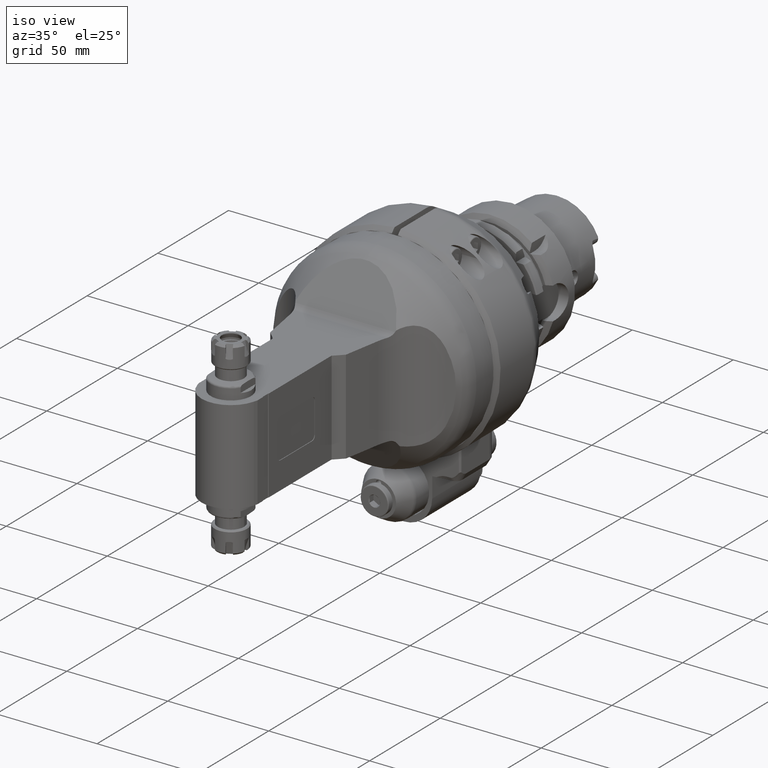
[diagram: clean part render]
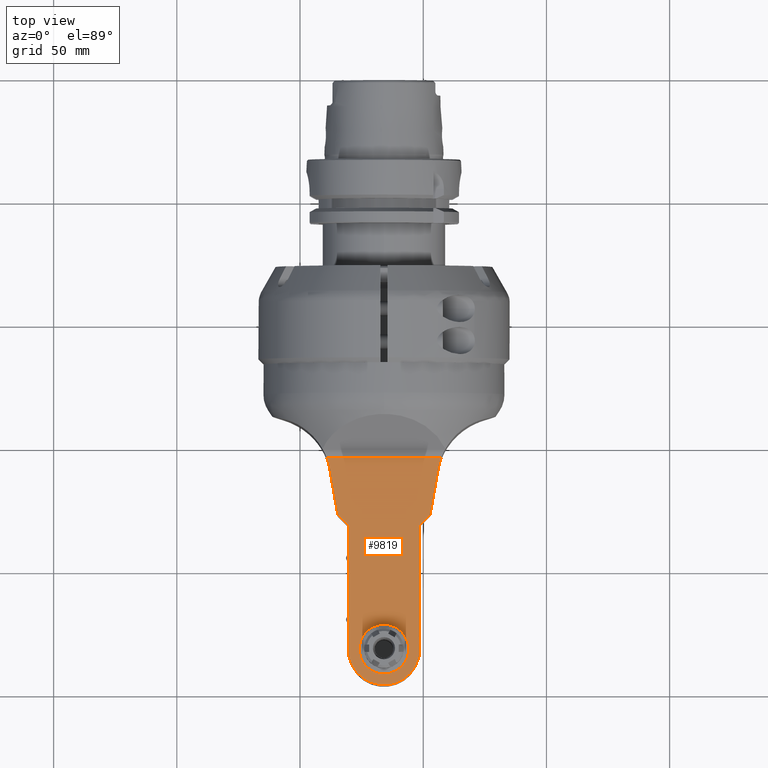
[diagram: tour spotlight — one face highlighted and labeled with its STEP entity id]
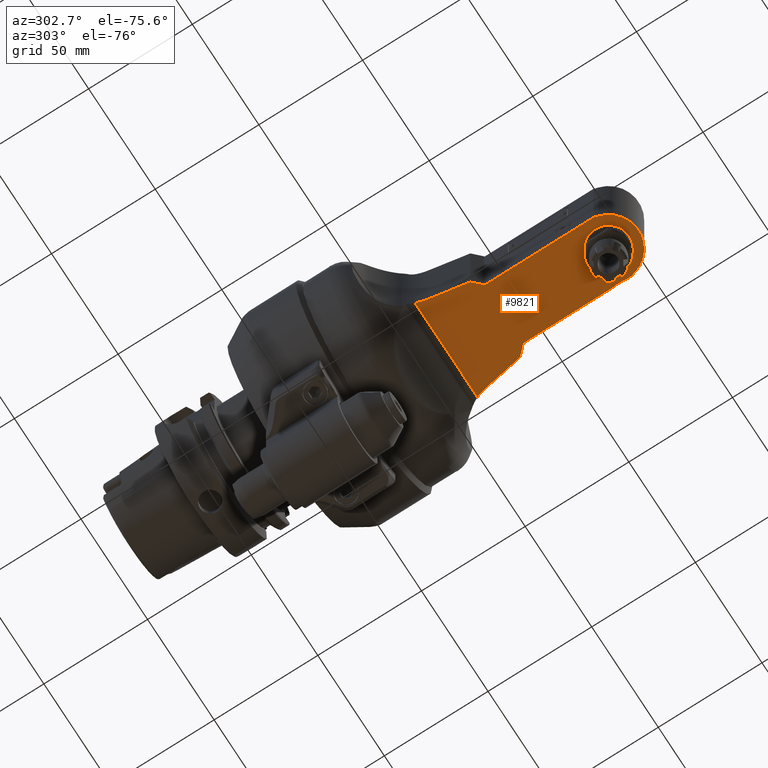
[diagram: tour spotlight — one face highlighted and labeled with its STEP entity id]
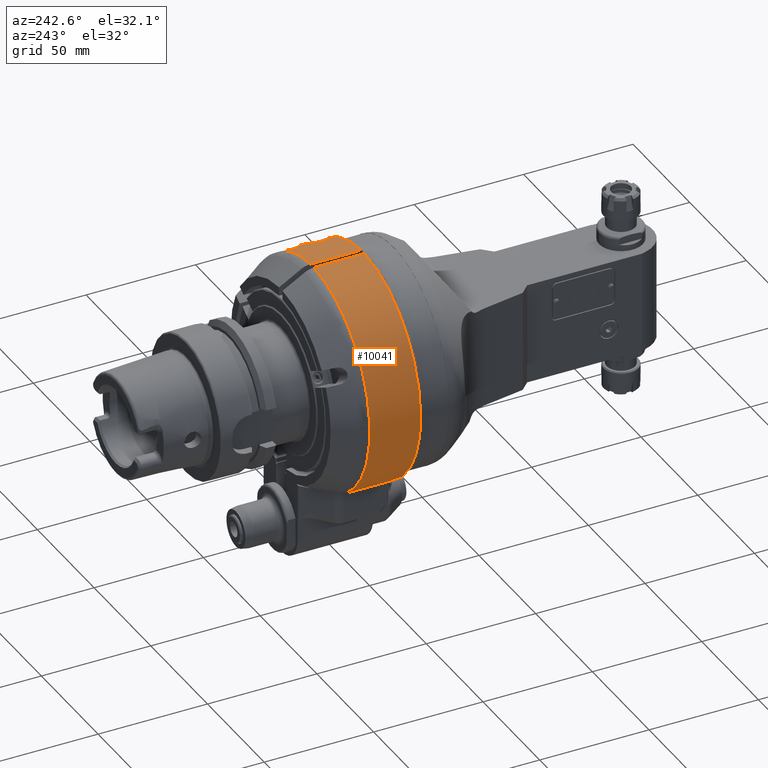
[diagram: tour spotlight — one face highlighted and labeled with its STEP entity id]
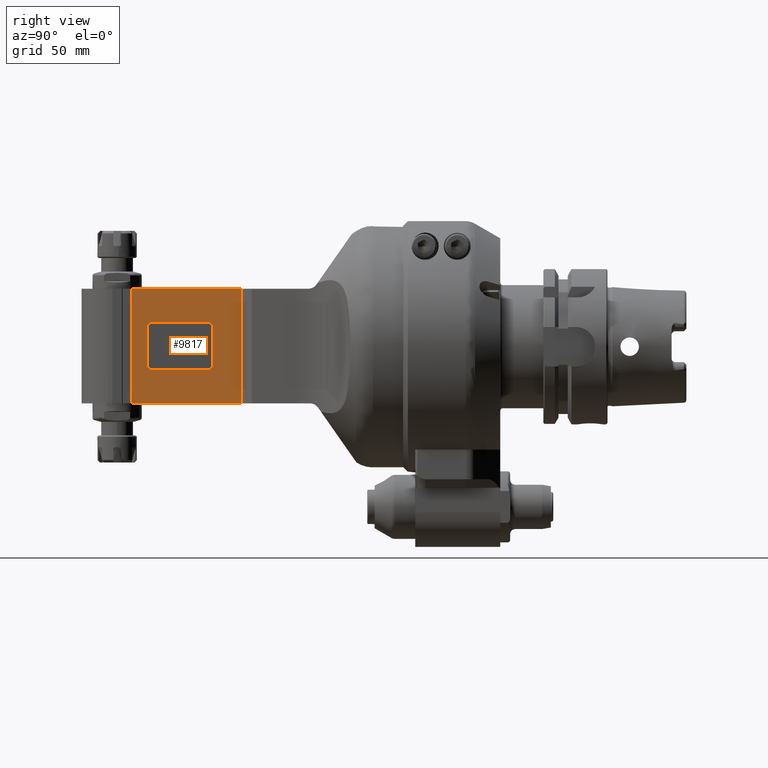
[diagram: tour spotlight — one face highlighted and labeled with its STEP entity id]
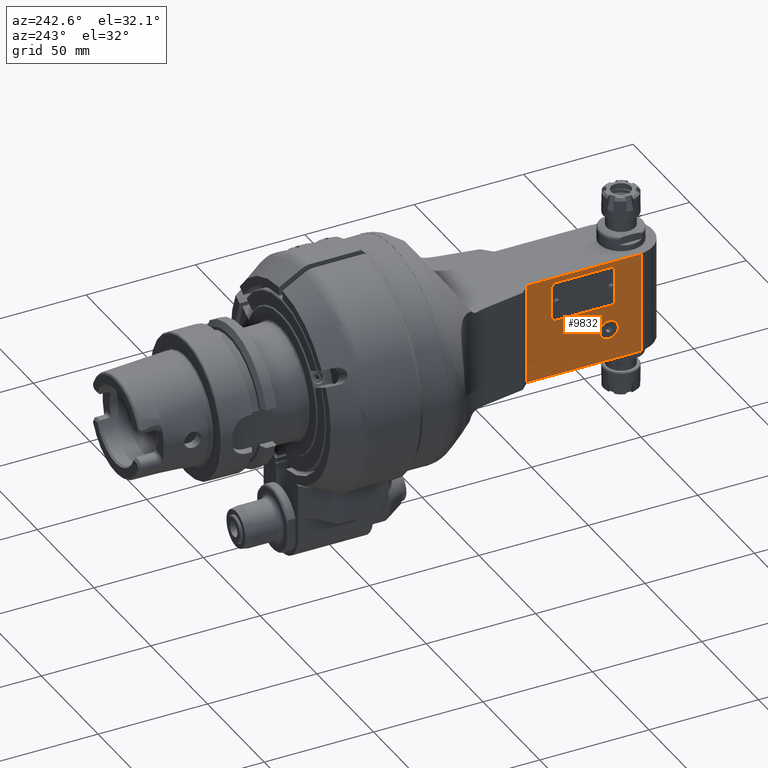
[diagram: tour spotlight — one face highlighted and labeled with its STEP entity id]
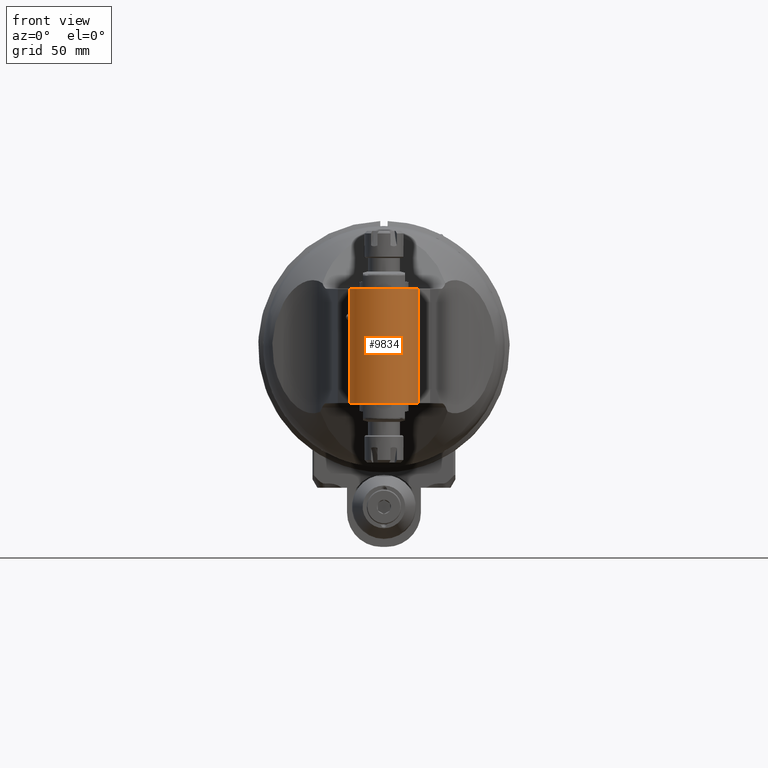
[diagram: tour spotlight — one face highlighted and labeled with its STEP entity id]
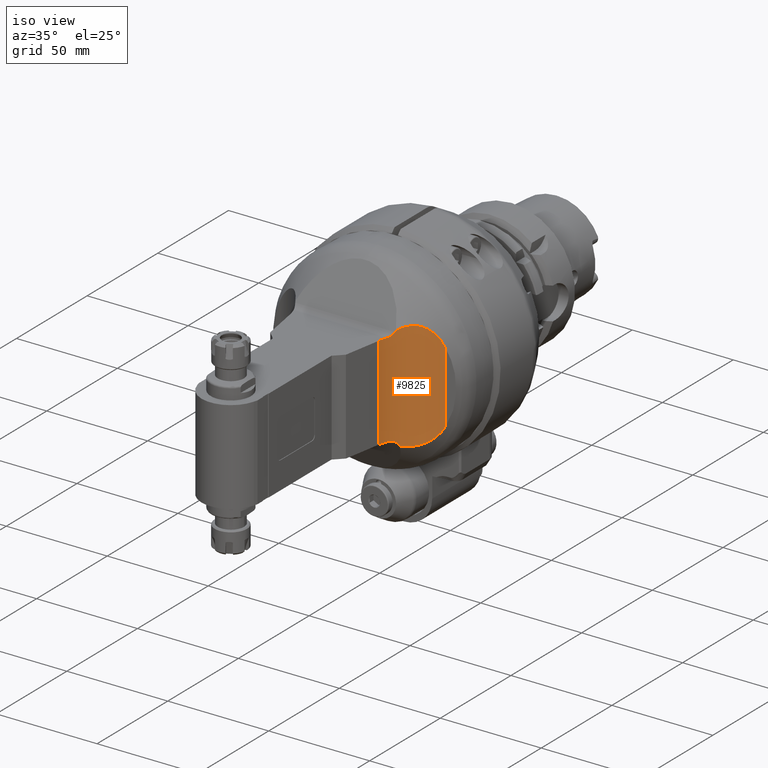
[diagram: tour spotlight — one face highlighted and labeled with its STEP entity id]
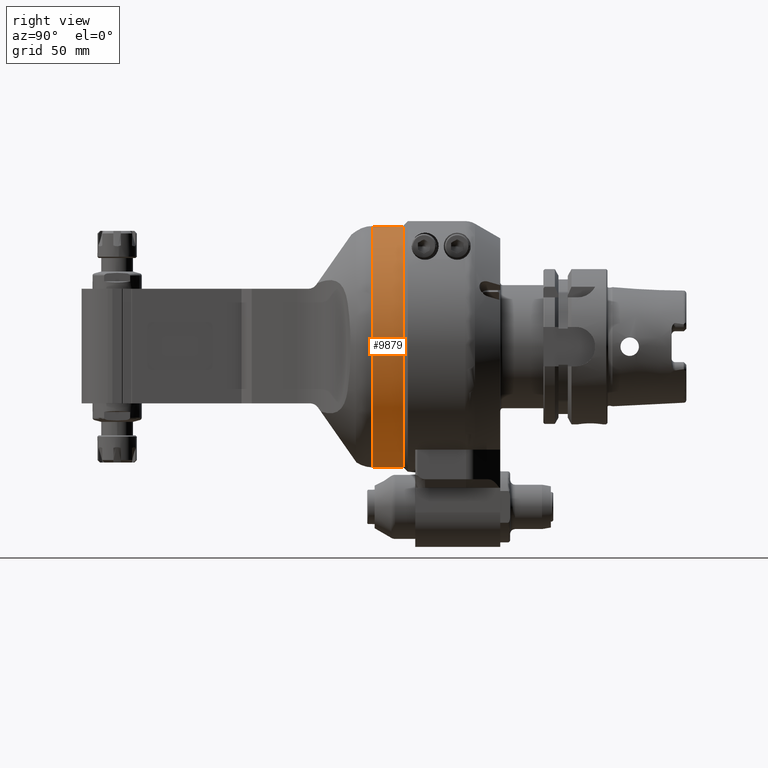
[diagram: tour spotlight — one face highlighted and labeled with its STEP entity id]
A machine part: a face-by-face anatomy tour. The part has 603 B-rep faces; the first image is the clean iso view, then the 8 largest visible faces are spotlighted one at a time (largest first), each with its STEP entity span.

Face 1 — top view, entity #9819. In plain terms, the highlighted planar face has unit normal (-0, 0, -1).
Definition (entity closure, byte-faithful):
#492=FACE_BOUND('',#1858,.T.);
#757=CIRCLE('',#10488,26.);
#758=CIRCLE('',#10489,26.);
#759=CIRCLE('',#10490,14.5);
#760=CIRCLE('',#10491,10.);
#1253=FACE_OUTER_BOUND('',#1857,.T.);
#1857=EDGE_LOOP('',(#6524,#6525,#6526,#6527,#6528,#6529,#6530,#6531,#6532,
#6533,#6534,#6535,#6536,#6537,#6538,#6539,#6540,#6541));
#1858=EDGE_LOOP('',(#6542));
#2559=LINE('',#14580,#3270);
#2563=LINE('',#14594,#3274);
#2566=LINE('',#14600,#3277);
#2567=LINE('',#14602,#3278);
#2568=LINE('',#14604,#3279);
#2569=LINE('',#14608,#3280);
#2570=LINE('',#14612,#3281);
#2571=LINE('',#14614,#3282);
#2572=LINE('',#14616,#3283);
#2573=LINE('',#14618,#3284);
#2574=LINE('',#14620,#3285);
#2575=LINE('',#14624,#3286);
#2576=LINE('',#14626,#3287);
#2577=LINE('',#14628,#3288);
#2578=LINE('',#14629,#3289);
#3270=VECTOR('',#11625,44.50000003875);
#3274=VECTOR('',#11637,0.282842712474601);
#3277=VECTOR('',#11642,0.115426611885695);
#3278=VECTOR('',#11643,5.83766373239261);
#3279=VECTOR('',#11644,18.6166855458298);
#3280=VECTOR('',#11647,46.46662504907);
#3281=VECTOR('',#11650,18.6166855458298);
#3282=VECTOR('',#11651,5.83766373239302);
#3283=VECTOR('',#11652,0.115426611885695);
#3284=VECTOR('',#11653,52.40896125377);
#3285=VECTOR('',#11654,1.90896121501705);
#3286=VECTOR('',#11657,1.90896121501705);
#3287=VECTOR('',#11658,3.908961215017);
#3288=VECTOR('',#11659,0.282842712474601);
#3289=VECTOR('',#11660,3.6);
#3982=VERTEX_POINT('',#14574);
#3984=VERTEX_POINT('',#14578);
#3990=VERTEX_POINT('',#14593);
#3992=VERTEX_POINT('',#14599);
#3993=VERTEX_POINT('',#14601);
#3994=VERTEX_POINT('',#14603);
#3995=VERTEX_POINT('',#14605);
#3996=VERTEX_POINT('',#14607);
#3997=VERTEX_POINT('',#14609);
#3998=VERTEX_POINT('',#14611);
#3999=VERTEX_POINT('',#14613);
#4000=VERTEX_POINT('',#14615);
#4001=VERTEX_POINT('',#14617);
#4002=VERTEX_POINT('',#14619);
#4003=VERTEX_POINT('',#14621);
#4004=VERTEX_POINT('',#14623);
#4005=VERTEX_POINT('',#14625);
#4006=VERTEX_POINT('',#14627);
#4007=VERTEX_POINT('',#14630);
#4991=EDGE_CURVE('',#3982,#3984,#2559,.T.);
#4998=EDGE_CURVE('',#3982,#3990,#2563,.T.);
#5001=EDGE_CURVE('',#3984,#3992,#2566,.T.);
#5002=EDGE_CURVE('',#3992,#3993,#2567,.T.);
#5003=EDGE_CURVE('',#3993,#3994,#2568,.T.);
#5004=EDGE_CURVE('',#3994,#3995,#757,.T.);
#5005=EDGE_CURVE('',#3996,#3995,#2569,.T.);
#5006=EDGE_CURVE('',#3996,#3997,#758,.T.);
#5007=EDGE_CURVE('',#3997,#3998,#2570,.T.);
#5008=EDGE_CURVE('',#3998,#3999,#2571,.T.);
#5009=EDGE_CURVE('',#3999,#4000,#2572,.T.);
#5010=EDGE_CURVE('',#4000,#4001,#2573,.T.);
#5011=EDGE_CURVE('',#4001,#4002,#2574,.T.);
#5012=EDGE_CURVE('',#4003,#4002,#759,.T.);
#5013=EDGE_CURVE('',#4003,#4004,#2575,.T.);
#5014=EDGE_CURVE('',#4004,#4005,#2576,.T.);
#5015=EDGE_CURVE('',#4006,#4005,#2577,.T.);
#5016=EDGE_CURVE('',#3990,#4006,#2578,.T.);
#5017=EDGE_CURVE('',#4007,#4007,#760,.T.);
#6524=ORIENTED_EDGE('',*,*,#4998,.F.);
#6525=ORIENTED_EDGE('',*,*,#4991,.T.);
#6526=ORIENTED_EDGE('',*,*,#5001,.T.);
#6527=ORIENTED_EDGE('',*,*,#5002,.T.);
#6528=ORIENTED_EDGE('',*,*,#5003,.T.);
#6529=ORIENTED_EDGE('',*,*,#5004,.T.);
#6530=ORIENTED_EDGE('',*,*,#5005,.F.);
#6531=ORIENTED_EDGE('',*,*,#5006,.T.);
#6532=ORIENTED_EDGE('',*,*,#5007,.T.);
#6533=ORIENTED_EDGE('',*,*,#5008,.T.);
#6534=ORIENTED_EDGE('',*,*,#5009,.T.);
#6535=ORIENTED_EDGE('',*,*,#5010,.T.);
#6536=ORIENTED_EDGE('',*,*,#5011,.T.);
#6537=ORIENTED_EDGE('',*,*,#5012,.F.);
#6538=ORIENTED_EDGE('',*,*,#5013,.T.);
#6539=ORIENTED_EDGE('',*,*,#5014,.T.);
#6540=ORIENTED_EDGE('',*,*,#5015,.F.);
#6541=ORIENTED_EDGE('',*,*,#5016,.F.);
#6542=ORIENTED_EDGE('',*,*,#5017,.T.);
#9530=PLANE('',#10487);
#9819=ADVANCED_FACE('',(#1253,#492),#9530,.F.);
#10487=AXIS2_PLACEMENT_3D('',#14598,#11640,#11641);
#10488=AXIS2_PLACEMENT_3D('',#14606,#11645,#11646);
#10489=AXIS2_PLACEMENT_3D('',#14610,#11648,#11649);
#10490=AXIS2_PLACEMENT_3D('',#14622,#11655,#11656);
#10491=AXIS2_PLACEMENT_3D('',#14631,#11661,#11662);
#11625=DIRECTION('',(0.,1.,0.));
#11637=DIRECTION('',(-0.707106781186598,-0.707106781186498,0.));
#11640=DIRECTION('center_axis',(0.,0.,-1.));
#11641=DIRECTION('ref_axis',(0.,1.,0.));
#11642=DIRECTION('',(0.999999999999944,-3.35708702420415E-7,0.));
#11643=DIRECTION('',(0.707106781186548,0.707106781186548,0.));
#11644=DIRECTION('',(0.173648177666902,0.984807753012213,0.));
#11645=DIRECTION('center_axis',(0.,0.,-1.));
#11646=DIRECTION('ref_axis',(-0.984807753012142,0.173648177667307,0.));
#11647=DIRECTION('',(1.,0.,0.));
#11648=DIRECTION('center_axis',(0.,0.,-1.));
#11649=DIRECTION('ref_axis',(0.936450799860009,0.350798944470403,0.));
#11650=DIRECTION('',(0.173648177666902,-0.984807753012213,0.));
#11651=DIRECTION('',(0.707106781186598,-0.707106781186498,0.));
#11652=DIRECTION('',(0.999999999999944,3.35708702420215E-7,0.));
#11653=DIRECTION('',(0.,-1.,0.));
#11654=DIRECTION('',(0.258819045102493,-0.965925826289076,0.));
#11655=DIRECTION('center_axis',(0.,0.,-1.));
#11656=DIRECTION('ref_axis',(0.965925826289076,-0.258819045102493,0.));
#11657=DIRECTION('',(0.258819045102493,0.965925826289076,0.));
#11658=DIRECTION('',(0.,1.,0.));
#11659=DIRECTION('',(0.707106781186598,-0.707106781186498,0.));
#11660=DIRECTION('',(0.,-1.,0.));
#11661=DIRECTION('center_axis',(0.,0.,-1.));
#11662=DIRECTION('ref_axis',(5.755397733752E-13,1.,0.));
#14574=CARTESIAN_POINT('',(14.5,6.,23.5));
#14578=CARTESIAN_POINT('',(14.5,50.5000000382903,23.5));
#14580=CARTESIAN_POINT('',(14.5,6.,23.5));
#14593=CARTESIAN_POINT('',(14.3,5.8,23.5));
#14594=CARTESIAN_POINT('',(14.5,6.,23.5));
#14598=CARTESIAN_POINT('Origin',(58.8000024,-9.5,23.5));
#14599=CARTESIAN_POINT('',(14.61542661189,50.5,23.5));
#14600=CARTESIAN_POINT('',(14.5,50.50000003875,23.5));
#14601=CARTESIAN_POINT('',(18.74327822335,54.62785161146,23.5));
#14602=CARTESIAN_POINT('',(14.61542661189,50.5,23.5));
#14603=CARTESIAN_POINT('',(21.97603174258,72.96170787239,23.5));
#14604=CARTESIAN_POINT('',(18.74327822335,54.62785161146,23.5));
#14605=CARTESIAN_POINT('',(23.23331252454,77.56762780927,23.5));
#14606=CARTESIAN_POINT('Origin',(47.5810333209,68.44685525304,23.5));
#14607=CARTESIAN_POINT('',(-23.23331252454,77.56762780927,23.5));
#14608=CARTESIAN_POINT('',(-23.23331252454,77.56762780927,23.5));
#14609=CARTESIAN_POINT('',(-21.97603174258,72.96170787239,23.5));
#14610=CARTESIAN_POINT('Origin',(-47.5810333209,68.44685525304,23.5));
#14611=CARTESIAN_POINT('',(-18.74327822335,54.62785161146,23.5));
#14612=CARTESIAN_POINT('',(-21.97603174258,72.96170787239,23.5));
#14613=CARTESIAN_POINT('',(-14.61542661189,50.5,23.5));
#14614=CARTESIAN_POINT('',(-18.74327822335,54.62785161146,23.5));
#14615=CARTESIAN_POINT('',(-14.5,50.5000000382901,23.5));
#14616=CARTESIAN_POINT('',(-14.61542661189,50.5,23.5));
#14617=CARTESIAN_POINT('',(-14.5,-1.908961215017,23.5));
#14618=CARTESIAN_POINT('',(-14.5,50.50000003875,23.5));
#14619=CARTESIAN_POINT('',(-14.00592448119,-3.752876153987,23.5));
#14620=CARTESIAN_POINT('',(-14.5,-1.908961215017,23.5));
#14621=CARTESIAN_POINT('',(14.00592448119,-3.752876153987,23.5));
#14622=CARTESIAN_POINT('Origin',(0.,0.,23.5));
#14623=CARTESIAN_POINT('',(14.5,-1.908961215017,23.5));
#14624=CARTESIAN_POINT('',(14.00592448119,-3.752876153987,23.5));
#14625=CARTESIAN_POINT('',(14.5,2.,23.5));
#14626=CARTESIAN_POINT('',(14.5,-1.908961215017,23.5));
#14627=CARTESIAN_POINT('',(14.3,2.2,23.5));
#14628=CARTESIAN_POINT('',(14.3,2.2,23.5));
#14629=CARTESIAN_POINT('',(14.3,5.8,23.5));
#14630=CARTESIAN_POINT('',(5.75987516784215E-12,9.99999999988081,23.5));
#14631=CARTESIAN_POINT('Origin',(0.,-1.191940431602E-10,23.5));

Face 2 — auxiliary view, entity #9821. In plain terms, the highlighted planar face has unit normal (-0, 0, -1).
Definition (entity closure, byte-faithful):
#493=FACE_BOUND('',#1861,.T.);
#761=CIRCLE('',#10494,14.5);
#762=CIRCLE('',#10495,26.);
#763=CIRCLE('',#10496,26.);
#764=CIRCLE('',#10497,10.);
#1255=FACE_OUTER_BOUND('',#1860,.T.);
#1860=EDGE_LOOP('',(#6547,#6548,#6549,#6550,#6551,#6552,#6553,#6554,#6555,
#6556,#6557,#6558,#6559,#6560,#6561,#6562,#6563,#6564));
#1861=EDGE_LOOP('',(#6565));
#2557=LINE('',#14577,#3268);
#2565=LINE('',#14597,#3276);
#2580=LINE('',#14635,#3291);
#2581=LINE('',#14638,#3292);
#2582=LINE('',#14640,#3293);
#2583=LINE('',#14642,#3294);
#2584=LINE('',#14646,#3295);
#2585=LINE('',#14648,#3296);
#2586=LINE('',#14650,#3297);
#2587=LINE('',#14652,#3298);
#2588=LINE('',#14654,#3299);
#2589=LINE('',#14658,#3300);
#2590=LINE('',#14662,#3301);
#2591=LINE('',#14664,#3302);
#2592=LINE('',#14665,#3303);
#3268=VECTOR('',#11623,44.50000003875);
#3276=VECTOR('',#11639,0.282842712474601);
#3291=VECTOR('',#11666,3.6);
#3292=VECTOR('',#11669,0.282842712474601);
#3293=VECTOR('',#11670,3.908961215017);
#3294=VECTOR('',#11671,1.90896121501705);
#3295=VECTOR('',#11674,1.90896121501705);
#3296=VECTOR('',#11675,52.40896125377);
#3297=VECTOR('',#11676,0.115426611885695);
#3298=VECTOR('',#11677,5.83766373239302);
#3299=VECTOR('',#11678,18.6166855458298);
#3300=VECTOR('',#11681,47.01444572508);
#3301=VECTOR('',#11684,18.6166855458298);
#3302=VECTOR('',#11685,5.83766373239261);
#3303=VECTOR('',#11686,0.115426611885695);
#3981=VERTEX_POINT('',#14573);
#3983=VERTEX_POINT('',#14576);
#3991=VERTEX_POINT('',#14595);
#4008=VERTEX_POINT('',#14633);
#4009=VERTEX_POINT('',#14637);
#4010=VERTEX_POINT('',#14639);
#4011=VERTEX_POINT('',#14641);
#4012=VERTEX_POINT('',#14643);
#4013=VERTEX_POINT('',#14645);
#4014=VERTEX_POINT('',#14647);
#4015=VERTEX_POINT('',#14649);
#4016=VERTEX_POINT('',#14651);
#4017=VERTEX_POINT('',#14653);
#4018=VERTEX_POINT('',#14655);
#4019=VERTEX_POINT('',#14657);
#4020=VERTEX_POINT('',#14659);
#4021=VERTEX_POINT('',#14661);
#4022=VERTEX_POINT('',#14663);
#4023=VERTEX_POINT('',#14666);
#4989=EDGE_CURVE('',#3983,#3981,#2557,.T.);
#5000=EDGE_CURVE('',#3981,#3991,#2565,.T.);
#5019=EDGE_CURVE('',#3991,#4008,#2580,.T.);
#5020=EDGE_CURVE('',#4008,#4009,#2581,.T.);
#5021=EDGE_CURVE('',#4009,#4010,#2582,.T.);
#5022=EDGE_CURVE('',#4010,#4011,#2583,.T.);
#5023=EDGE_CURVE('',#4011,#4012,#761,.T.);
#5024=EDGE_CURVE('',#4012,#4013,#2584,.T.);
#5025=EDGE_CURVE('',#4013,#4014,#2585,.T.);
#5026=EDGE_CURVE('',#4014,#4015,#2586,.T.);
#5027=EDGE_CURVE('',#4015,#4016,#2587,.T.);
#5028=EDGE_CURVE('',#4016,#4017,#2588,.T.);
#5029=EDGE_CURVE('',#4017,#4018,#762,.T.);
#5030=EDGE_CURVE('',#4019,#4018,#2589,.T.);
#5031=EDGE_CURVE('',#4019,#4020,#763,.T.);
#5032=EDGE_CURVE('',#4020,#4021,#2590,.T.);
#5033=EDGE_CURVE('',#4021,#4022,#2591,.T.);
#5034=EDGE_CURVE('',#4022,#3983,#2592,.T.);
#5035=EDGE_CURVE('',#4023,#4023,#764,.T.);
#6547=ORIENTED_EDGE('',*,*,#5000,.T.);
#6548=ORIENTED_EDGE('',*,*,#5019,.T.);
#6549=ORIENTED_EDGE('',*,*,#5020,.T.);
#6550=ORIENTED_EDGE('',*,*,#5021,.T.);
#6551=ORIENTED_EDGE('',*,*,#5022,.T.);
#6552=ORIENTED_EDGE('',*,*,#5023,.T.);
#6553=ORIENTED_EDGE('',*,*,#5024,.T.);
#6554=ORIENTED_EDGE('',*,*,#5025,.T.);
#6555=ORIENTED_EDGE('',*,*,#5026,.T.);
#6556=ORIENTED_EDGE('',*,*,#5027,.T.);
#6557=ORIENTED_EDGE('',*,*,#5028,.T.);
#6558=ORIENTED_EDGE('',*,*,#5029,.T.);
#6559=ORIENTED_EDGE('',*,*,#5030,.F.);
#6560=ORIENTED_EDGE('',*,*,#5031,.T.);
#6561=ORIENTED_EDGE('',*,*,#5032,.T.);
#6562=ORIENTED_EDGE('',*,*,#5033,.T.);
#6563=ORIENTED_EDGE('',*,*,#5034,.T.);
#6564=ORIENTED_EDGE('',*,*,#4989,.T.);
#6565=ORIENTED_EDGE('',*,*,#5035,.T.);
#9532=PLANE('',#10493);
#9821=ADVANCED_FACE('',(#1255,#493),#9532,.T.);
#10493=AXIS2_PLACEMENT_3D('',#14636,#11667,#11668);
#10494=AXIS2_PLACEMENT_3D('',#14644,#11672,#11673);
#10495=AXIS2_PLACEMENT_3D('',#14656,#11679,#11680);
#10496=AXIS2_PLACEMENT_3D('',#14660,#11682,#11683);
#10497=AXIS2_PLACEMENT_3D('',#14667,#11687,#11688);
#11623=DIRECTION('',(0.,-1.,0.));
#11639=DIRECTION('',(-0.707106781186598,-0.707106781186498,0.));
#11666=DIRECTION('',(0.,-1.,0.));
#11667=DIRECTION('center_axis',(0.,0.,-1.));
#11668=DIRECTION('ref_axis',(0.,-1.,0.));
#11669=DIRECTION('',(0.707106781186598,-0.707106781186498,0.));
#11670=DIRECTION('',(0.,-1.,0.));
#11671=DIRECTION('',(-0.258819045102493,-0.965925826289076,0.));
#11672=DIRECTION('center_axis',(0.,0.,-1.));
#11673=DIRECTION('ref_axis',(0.965925826289076,-0.258819045102493,0.));
#11674=DIRECTION('',(-0.258819045102493,0.965925826289076,0.));
#11675=DIRECTION('',(0.,1.,0.));
#11676=DIRECTION('',(-0.999999999999944,-3.35708456188315E-7,0.));
#11677=DIRECTION('',(-0.707106781186598,0.707106781186498,0.));
#11678=DIRECTION('',(-0.173648177666902,0.984807753012213,0.));
#11679=DIRECTION('center_axis',(0.,0.,1.));
#11680=DIRECTION('ref_axis',(0.984807753012162,0.173648177667193,0.));
#11681=DIRECTION('',(-1.,-1.50528322498E-13,0.));
#11682=DIRECTION('center_axis',(0.,0.,1.));
#11683=DIRECTION('ref_axis',(-0.925915786859665,0.377730003632286,0.));
#11684=DIRECTION('',(-0.173648177666902,-0.984807753012213,0.));
#11685=DIRECTION('',(-0.707106781186548,-0.707106781186548,0.));
#11686=DIRECTION('',(-0.999999999999944,3.35708456188515E-7,6.15579651999027E-14));
#11687=DIRECTION('center_axis',(0.,0.,1.));
#11688=DIRECTION('ref_axis',(-5.7642792556E-13,1.,0.));
#14573=CARTESIAN_POINT('',(14.5,6.,-23.));
#14576=CARTESIAN_POINT('',(14.5,50.5000000382901,-23.));
#14577=CARTESIAN_POINT('',(14.5,50.50000003875,-23.));
#14595=CARTESIAN_POINT('',(14.3,5.8,-23.));
#14597=CARTESIAN_POINT('',(14.5,6.,-23.));
#14633=CARTESIAN_POINT('',(14.3,2.2,-23.));
#14635=CARTESIAN_POINT('',(14.3,5.8,-23.));
#14636=CARTESIAN_POINT('Origin',(13.75,5.,-23.));
#14637=CARTESIAN_POINT('',(14.5,2.,-23.));
#14638=CARTESIAN_POINT('',(14.3,2.2,-23.));
#14639=CARTESIAN_POINT('',(14.5,-1.908961215017,-23.));
#14640=CARTESIAN_POINT('',(14.5,2.,-23.));
#14641=CARTESIAN_POINT('',(14.00592448119,-3.752876153987,-23.));
#14642=CARTESIAN_POINT('',(14.5,-1.908961215017,-23.));
#14643=CARTESIAN_POINT('',(-14.00592448119,-3.752876153987,-23.));
#14644=CARTESIAN_POINT('Origin',(0.,0.,-23.));
#14645=CARTESIAN_POINT('',(-14.5,-1.908961215017,-23.));
#14646=CARTESIAN_POINT('',(-14.00592448119,-3.752876153987,-23.));
#14647=CARTESIAN_POINT('',(-14.5,50.5000000382903,-23.));
#14648=CARTESIAN_POINT('',(-14.5,-1.908961215017,-23.));
#14649=CARTESIAN_POINT('',(-14.61542661189,50.5,-23.));
#14650=CARTESIAN_POINT('',(-14.5,50.50000003875,-23.));
#14651=CARTESIAN_POINT('',(-18.74327822335,54.62785161146,-23.));
#14652=CARTESIAN_POINT('',(-14.61542661189,50.5,-23.));
#14653=CARTESIAN_POINT('',(-21.97603174258,72.96170787239,-23.));
#14654=CARTESIAN_POINT('',(-18.74327822335,54.62785161146,-23.));
#14655=CARTESIAN_POINT('',(-23.50722286254,78.26783534748,-23.));
#14656=CARTESIAN_POINT('Origin',(-47.5810333209,68.44685525304,-23.));
#14657=CARTESIAN_POINT('',(23.50722286254,78.26783534749,-23.));
#14658=CARTESIAN_POINT('',(23.50722286254,78.26783534749,-23.));
#14659=CARTESIAN_POINT('',(21.97603174258,72.96170787239,-23.));
#14660=CARTESIAN_POINT('Origin',(47.5810333209,68.44685525304,-23.));
#14661=CARTESIAN_POINT('',(18.74327822335,54.62785161146,-23.));
#14662=CARTESIAN_POINT('',(21.97603174258,72.96170787239,-23.));
#14663=CARTESIAN_POINT('',(14.61542661189,50.5,-23.));
#14664=CARTESIAN_POINT('',(18.74327822335,54.62785161146,-23.));
#14665=CARTESIAN_POINT('',(14.61542661189,50.5,-23.));
#14666=CARTESIAN_POINT('',(-5.75987516784215E-12,10.,-23.));
#14667=CARTESIAN_POINT('Origin',(0.,0.,-23.));

Face 3 — auxiliary view, entity #10041. In plain terms, the highlighted cylindrical surface (partial cylindrical patch) has radius 51 mm, axis along (0, -1, 0).
Definition (entity closure, byte-faithful):
#373=B_SPLINE_CURVE_WITH_KNOTS('',3,(#16187,#16188,#16189,#16190,#16191,
#16192,#16193,#16194,#16195,#16196,#16197,#16198,#16199,#16200,#16201,#16202,
#16203,#16204),.UNSPECIFIED.,.F.,.F.,(4,2,2,2,2,2,2,2,4),(1.24497996375057,
1.57211089183856,1.89924181992655,2.10031433028339,2.30138684064023,2.50245935099707,
2.70353186135391,3.0306627894419,3.35779371752989),.UNSPECIFIED.);
#376=B_SPLINE_CURVE_WITH_KNOTS('',3,(#16282,#16283,#16284,#16285,#16286,
#16287),.UNSPECIFIED.,.F.,.F.,(4,2,4),(-0.351622839102922,-0.201072510356838,
0.),.UNSPECIFIED.);
#377=B_SPLINE_CURVE_WITH_KNOTS('',3,(#16289,#16290,#16291,#16292,#16293,
#16294,#16295,#16296,#16297,#16298,#16299,#16300,#16301,#16302,#16303,#16304,
#16305,#16306,#16307,#16308,#16309,#16310,#16311,#16312,#16313,#16314),
 .UNSPECIFIED.,.F.,.F.,(4,2,2,2,2,2,2,2,2,2,2,2,4),(0.,0.201072510356838,
0.402145020713677,0.729275948801668,1.05640687688966,1.45814522272358,1.85988356855749,
2.08063520459886,2.19101102261954,2.30138684064023,2.41176265866091,2.52213847668159,
2.7154535046118),.UNSPECIFIED.);
#378=B_SPLINE_CURVE_WITH_KNOTS('',3,(#16318,#16319,#16320,#16321,#16322,
#16323,#16324,#16325,#16326,#16327,#16328,#16329,#16330,#16331,#16332,#16333,
#16334,#16335,#16336,#16337,#16338,#16339,#16340),.UNSPECIFIED.,.F.,.F.,
(4,2,2,2,2,3,2,2,2,2,4),(-1.24497996375057,-0.843241617916652,-0.441503272082734,
-0.220751636041367,-0.110375818020684,0.,0.110375818020684,0.220751636041367,
0.441503272082734,0.843241617916652,1.24497996375057),.UNSPECIFIED.);
#540=FACE_BOUND('',#2128,.T.);
#661=CYLINDRICAL_SURFACE('',#10920,51.);
#956=CIRCLE('',#10921,51.);
#957=CIRCLE('',#10922,51.);
#958=CIRCLE('',#10923,51.);
#959=CIRCLE('',#10924,51.);
#960=CIRCLE('',#10925,51.);
#1475=FACE_OUTER_BOUND('',#2127,.T.);
#2127=EDGE_LOOP('',(#7597,#7598,#7599,#7600,#7601,#7602,#7603,#7604,#7605,
#7606,#7607));
#2128=EDGE_LOOP('',(#7608,#7609));
#2818=LINE('',#16225,#3529);
#2820=LINE('',#16229,#3531);
#2826=LINE('',#16276,#3537);
#2827=LINE('',#16317,#3538);
#3529=VECTOR('',#12756,20.23205080757);
#3531=VECTOR('',#12758,20.23205080757);
#3537=VECTOR('',#12770,23.23206191748);
#3538=VECTOR('',#12779,23.23206611221);
#4334=VERTEX_POINT('',#16183);
#4336=VERTEX_POINT('',#16186);
#4343=VERTEX_POINT('',#16223);
#4344=VERTEX_POINT('',#16224);
#4345=VERTEX_POINT('',#16226);
#4346=VERTEX_POINT('',#16228);
#4356=VERTEX_POINT('',#16272);
#4357=VERTEX_POINT('',#16273);
#4358=VERTEX_POINT('',#16275);
#4359=VERTEX_POINT('',#16279);
#4360=VERTEX_POINT('',#16281);
#4361=VERTEX_POINT('',#16288);
#4362=VERTEX_POINT('',#16315);
#5514=EDGE_CURVE('',#4336,#4334,#373,.T.);
#5524=EDGE_CURVE('',#4343,#4344,#2818,.T.);
#5526=EDGE_CURVE('',#4346,#4345,#2820,.T.);
#5537=EDGE_CURVE('',#4356,#4357,#956,.T.);
#5538=EDGE_CURVE('',#4356,#4358,#2826,.T.);
#5539=EDGE_CURVE('',#4346,#4358,#957,.T.);
#5540=EDGE_CURVE('',#4343,#4345,#958,.T.);
#5541=EDGE_CURVE('',#4359,#4344,#959,.T.);
#5542=EDGE_CURVE('',#4359,#4360,#376,.T.);
#5543=EDGE_CURVE('',#4360,#4361,#377,.T.);
#5544=EDGE_CURVE('',#4362,#4361,#960,.T.);
#5545=EDGE_CURVE('',#4362,#4357,#2827,.T.);
#5546=EDGE_CURVE('',#4334,#4336,#378,.T.);
#7597=ORIENTED_EDGE('',*,*,#5537,.F.);
#7598=ORIENTED_EDGE('',*,*,#5538,.T.);
#7599=ORIENTED_EDGE('',*,*,#5539,.F.);
#7600=ORIENTED_EDGE('',*,*,#5526,.T.);
#7601=ORIENTED_EDGE('',*,*,#5540,.F.);
#7602=ORIENTED_EDGE('',*,*,#5524,.T.);
#7603=ORIENTED_EDGE('',*,*,#5541,.F.);
#7604=ORIENTED_EDGE('',*,*,#5542,.T.);
#7605=ORIENTED_EDGE('',*,*,#5543,.T.);
#7606=ORIENTED_EDGE('',*,*,#5544,.F.);
#7607=ORIENTED_EDGE('',*,*,#5545,.T.);
#7608=ORIENTED_EDGE('',*,*,#5546,.T.);
#7609=ORIENTED_EDGE('',*,*,#5514,.T.);
#10041=ADVANCED_FACE('',(#1475,#540),#661,.T.);
#10920=AXIS2_PLACEMENT_3D('',#16271,#12766,#12767);
#10921=AXIS2_PLACEMENT_3D('',#16274,#12768,#12769);
#10922=AXIS2_PLACEMENT_3D('',#16277,#12771,#12772);
#10923=AXIS2_PLACEMENT_3D('',#16278,#12773,#12774);
#10924=AXIS2_PLACEMENT_3D('',#16280,#12775,#12776);
#10925=AXIS2_PLACEMENT_3D('',#16316,#12777,#12778);
#12756=DIRECTION('',(0.,1.,0.));
#12758=DIRECTION('',(0.,-1.,0.));
#12766=DIRECTION('center_axis',(0.,-1.,0.));
#12767=DIRECTION('ref_axis',(1.05873409698834E-10,0.,-1.));
#12768=DIRECTION('center_axis',(0.,-1.,0.));
#12769=DIRECTION('ref_axis',(0.,0.,-1.));
#12770=DIRECTION('',(1.230523343791E-9,1.,3.620724304585E-11));
#12771=DIRECTION('center_axis',(0.,1.,0.));
#12772=DIRECTION('ref_axis',(-0.574324904998308,0.,-0.818627450980411));
#12773=DIRECTION('center_axis',(0.,1.,0.));
#12774=DIRECTION('ref_axis',(0.,0.,-1.));
#12775=DIRECTION('center_axis',(0.,1.,0.));
#12776=DIRECTION('ref_axis',(0.702983781088798,0.,0.711205879844998));
#12777=DIRECTION('center_axis',(0.,1.,0.));
#12778=DIRECTION('ref_axis',(0.0294117647058804,0.,0.999567380468613));
#12779=DIRECTION('',(1.695142412605E-9,-1.,-4.9878538981E-11));
#16183=CARTESIAN_POINT('',(30.70418728464,3.5,40.7216512827));
#16186=CARTESIAN_POINT('',(30.7041872846388,14.5,40.7216512827));
#16187=CARTESIAN_POINT('Ctrl Pts',(30.7041872846388,14.5,40.7216512827));
#16188=CARTESIAN_POINT('Ctrl Pts',(31.5748612439451,14.5,40.0651617871045));
#16189=CARTESIAN_POINT('Ctrl Pts',(32.5000944024137,14.3775309176086,39.319256727814));
#16190=CARTESIAN_POINT('Ctrl Pts',(34.1986505928683,13.7586754272403,37.8511872002494));
#16191=CARTESIAN_POINT('Ctrl Pts',(34.9727734951554,13.2627488095064,37.1297545962508));
#16192=CARTESIAN_POINT('Ctrl Pts',(35.9500095679527,12.149351972259,36.1782586100401));
#16193=CARTESIAN_POINT('Ctrl Pts',(36.2931969488346,11.6039156243507,35.8317714924385));
#16194=CARTESIAN_POINT('Ctrl Pts',(36.760284817991,10.364786222781,35.3524177755747));
#16195=CARTESIAN_POINT('Ctrl Pts',(36.8840789626077,9.67024170118946,35.2216512827));
#16196=CARTESIAN_POINT('Ctrl Pts',(36.8840789626077,8.32975829881054,35.2216512827));
#16197=CARTESIAN_POINT('Ctrl Pts',(36.760284817991,7.63521377721896,35.3524177755747));
#16198=CARTESIAN_POINT('Ctrl Pts',(36.2931969488346,6.39608437564928,35.8317714924385));
#16199=CARTESIAN_POINT('Ctrl Pts',(35.9500095679527,5.85064802774095,36.1782586100401));
#16200=CARTESIAN_POINT('Ctrl Pts',(34.9727734951554,4.73725119049356,37.1297545962508));
#16201=CARTESIAN_POINT('Ctrl Pts',(34.1986505928683,4.24132457275967,37.8511872002494));
#16202=CARTESIAN_POINT('Ctrl Pts',(32.5000944024137,3.62246908239144,39.319256727814));
#16203=CARTESIAN_POINT('Ctrl Pts',(31.5748612439451,3.5,40.0651617871045));
#16204=CARTESIAN_POINT('Ctrl Pts',(30.7041872846388,3.5,40.7216512827));
#16223=CARTESIAN_POINT('',(29.29057015492,5.,-41.75));
#16224=CARTESIAN_POINT('',(29.29057015492,25.23205080757,-41.75));
#16225=CARTESIAN_POINT('',(29.29057015492,5.,-41.75));
#16226=CARTESIAN_POINT('',(-29.29057015492,5.,-41.75));
#16228=CARTESIAN_POINT('',(-29.29057015492,25.23205080757,-41.75));
#16229=CARTESIAN_POINT('',(-29.29057015492,25.23205080757,-41.75));
#16271=CARTESIAN_POINT('Origin',(0.,31.,0.));
#16272=CARTESIAN_POINT('',(-1.5,2.,50.9779364039));
#16273=CARTESIAN_POINT('',(1.5,2.,50.9779364039));
#16274=CARTESIAN_POINT('Origin',(0.,2.,0.));
#16275=CARTESIAN_POINT('',(-1.49999998570621,25.2320508150874,50.9779364043201));
#16276=CARTESIAN_POINT('',(-1.5,2.,50.9779364039));
#16277=CARTESIAN_POINT('Origin',(0.,25.23205080757,0.));
#16278=CARTESIAN_POINT('Origin',(0.,5.,0.));
#16279=CARTESIAN_POINT('',(35.85217283553,25.23205080757,36.27149987209));
#16280=CARTESIAN_POINT('Origin',(0.,25.23205080757,0.));
#16281=CARTESIAN_POINT('',(36.8840789626077,22.,35.2216512827));
#16282=CARTESIAN_POINT('Ctrl Pts',(35.8521728355289,25.2320508075659,36.2714998720946));
#16283=CARTESIAN_POINT('Ctrl Pts',(36.116701141561,24.872037357752,36.0100297211167));
#16284=CARTESIAN_POINT('Ctrl Pts',(36.3518780139684,24.44824163253,35.7715494474255));
#16285=CARTESIAN_POINT('Ctrl Pts',(36.760284817991,23.364786222781,35.3524177755747));
#16286=CARTESIAN_POINT('Ctrl Pts',(36.8840789626077,22.6702417011895,35.2216512827));
#16287=CARTESIAN_POINT('Ctrl Pts',(36.8840789626077,22.,35.2216512827));
#16288=CARTESIAN_POINT('',(23.67505525733,25.23205080757,45.1718026933));
#16289=CARTESIAN_POINT('Ctrl Pts',(36.8840789626077,22.,35.2216512827));
#16290=CARTESIAN_POINT('Ctrl Pts',(36.8840789626077,21.3297582988105,35.2216512827));
#16291=CARTESIAN_POINT('Ctrl Pts',(36.760284817991,20.635213777219,35.3524177755747));
#16292=CARTESIAN_POINT('Ctrl Pts',(36.2931969488346,19.3960843756493,35.8317714924385));
#16293=CARTESIAN_POINT('Ctrl Pts',(35.9500095679527,18.850648027741,36.1782586100401));
#16294=CARTESIAN_POINT('Ctrl Pts',(34.9727734951554,17.7372511904936,37.1297545962508));
#16295=CARTESIAN_POINT('Ctrl Pts',(34.1986505928683,17.2413245727597,37.8511872002494));
#16296=CARTESIAN_POINT('Ctrl Pts',(32.5000944024137,16.6224690823914,39.319256727814));
#16297=CARTESIAN_POINT('Ctrl Pts',(31.5748612439451,16.5,40.0651617871045));
#16298=CARTESIAN_POINT('Ctrl Pts',(29.6349422633357,16.5,41.5278636624324));
#16299=CARTESIAN_POINT('Ctrl Pts',(28.4428786872814,16.6828935944427,42.355228362554));
#16300=CARTESIAN_POINT('Ctrl Pts',(26.0747465478085,17.4026147018995,43.8528254301532));
#16301=CARTESIAN_POINT('Ctrl Pts',(24.8972647332227,17.9314939989374,44.5246315328702));
#16302=CARTESIAN_POINT('Ctrl Pts',(23.326334884601,19.001270294294,45.3572445916551));
#16303=CARTESIAN_POINT('Ctrl Pts',(22.7481982089167,19.480842706606,45.6482368635351));
#16304=CARTESIAN_POINT('Ctrl Pts',(22.0845481334827,20.3308258147761,45.9710043968678));
#16305=CARTESIAN_POINT('Ctrl Pts',(21.8974583438779,20.6354867073276,46.0599916909384));
#16306=CARTESIAN_POINT('Ctrl Pts',(21.6321449190877,21.286197560497,46.1851905126261));
#16307=CARTESIAN_POINT('Ctrl Pts',(21.5536296873747,21.6320806065977,46.2216512827));
#16308=CARTESIAN_POINT('Ctrl Pts',(21.5536296873747,22.3679193934023,46.2216512827));
#16309=CARTESIAN_POINT('Ctrl Pts',(21.6321449190877,22.713802439503,46.1851905126261));
#16310=CARTESIAN_POINT('Ctrl Pts',(21.8974583438779,23.3645132926724,46.0599916909384));
#16311=CARTESIAN_POINT('Ctrl Pts',(22.0845481334827,23.6691741852239,45.9710043968678));
#16312=CARTESIAN_POINT('Ctrl Pts',(22.6932093917128,24.4487292658961,45.6749807840842));
#16313=CARTESIAN_POINT('Ctrl Pts',(23.1848210334514,24.8782785168307,45.4287400225037));
#16314=CARTESIAN_POINT('Ctrl Pts',(23.6750552573295,25.2320508075737,45.1718026932997));
#16315=CARTESIAN_POINT('',(1.499999980309,25.2320508231036,50.9779364044793));
#16316=CARTESIAN_POINT('Origin',(0.,25.23205080757,0.));
#16317=CARTESIAN_POINT('',(1.499999960618,25.23206611221,50.97793640506));
#16318=CARTESIAN_POINT('Ctrl Pts',(30.7041872846388,3.5,40.7216512827));
#16319=CARTESIAN_POINT('Ctrl Pts',(29.6349422633357,3.5,41.5278636624324));
#16320=CARTESIAN_POINT('Ctrl Pts',(28.4428786872814,3.6828935944427,42.355228362554));
#16321=CARTESIAN_POINT('Ctrl Pts',(26.0747465478085,4.40261470189946,43.8528254301532));
#16322=CARTESIAN_POINT('Ctrl Pts',(24.8972647332227,4.93149399893739,44.5246315328702));
#16323=CARTESIAN_POINT('Ctrl Pts',(23.326334884601,6.00127029429395,45.3572445916551));
#16324=CARTESIAN_POINT('Ctrl Pts',(22.7481982089167,6.48084270660602,45.6482368635351));
#16325=CARTESIAN_POINT('Ctrl Pts',(22.0845481334827,7.33082581477611,45.9710043968678));
#16326=CARTESIAN_POINT('Ctrl Pts',(21.8974583438779,7.63548670732757,46.0599916909384));
#16327=CARTESIAN_POINT('Ctrl Pts',(21.6321449190877,8.28619756049704,46.1851905126261));
#16328=CARTESIAN_POINT('Ctrl Pts',(21.5536296873747,8.63208060659772,46.2216512827));
#16329=CARTESIAN_POINT('Ctrl Pts',(21.5536296873747,9.,46.2216512827));
#16330=CARTESIAN_POINT('Ctrl Pts',(21.5536296873747,9.36791939340228,46.2216512827));
#16331=CARTESIAN_POINT('Ctrl Pts',(21.6321449190877,9.71380243950296,46.1851905126261));
#16332=CARTESIAN_POINT('Ctrl Pts',(21.8974583438779,10.3645132926724,46.0599916909384));
#16333=CARTESIAN_POINT('Ctrl Pts',(22.0845481334827,10.6691741852239,45.9710043968678));
#16334=CARTESIAN_POINT('Ctrl Pts',(22.7481982089167,11.519157293394,45.6482368635351));
#16335=CARTESIAN_POINT('Ctrl Pts',(23.326334884601,11.998729705706,45.3572445916551));
#16336=CARTESIAN_POINT('Ctrl Pts',(24.8972647332227,13.0685060010626,44.5246315328702));
#16337=CARTESIAN_POINT('Ctrl Pts',(26.0747465478085,13.5973852981005,43.8528254301532));
#16338=CARTESIAN_POINT('Ctrl Pts',(28.4428786872814,14.3171064055573,42.355228362554));
#16339=CARTESIAN_POINT('Ctrl Pts',(29.6349422633357,14.5,41.5278636624324));
#16340=CARTESIAN_POINT('Ctrl Pts',(30.7041872846388,14.5,40.7216512827));

Face 4 — right view, entity #9817. In plain terms, the highlighted planar face has unit normal (-1, -0, 0).
Definition (entity closure, byte-faithful):
#491=FACE_BOUND('',#1855,.T.);
#753=CIRCLE('',#10481,2.);
#754=CIRCLE('',#10483,2.);
#755=CIRCLE('',#10484,2.);
#756=CIRCLE('',#10485,2.);
#1251=FACE_OUTER_BOUND('',#1854,.T.);
#1854=EDGE_LOOP('',(#6508,#6509,#6510,#6511));
#1855=EDGE_LOOP('',(#6512,#6513,#6514,#6515,#6516,#6517,#6518,#6519));
#2550=LINE('',#14552,#3261);
#2556=LINE('',#14575,#3267);
#2557=LINE('',#14577,#3268);
#2558=LINE('',#14579,#3269);
#2559=LINE('',#14580,#3270);
#2560=LINE('',#14585,#3271);
#2561=LINE('',#14588,#3272);
#2562=LINE('',#14591,#3273);
#3261=VECTOR('',#11600,15.5);
#3267=VECTOR('',#11622,46.5);
#3268=VECTOR('',#11623,44.50000003875);
#3269=VECTOR('',#11624,46.5);
#3270=VECTOR('',#11625,44.50000003875);
#3271=VECTOR('',#11628,22.5);
#3272=VECTOR('',#11631,22.5);
#3273=VECTOR('',#11634,15.5);
#3972=VERTEX_POINT('',#14549);
#3973=VERTEX_POINT('',#14551);
#3980=VERTEX_POINT('',#14569);
#3981=VERTEX_POINT('',#14573);
#3982=VERTEX_POINT('',#14574);
#3983=VERTEX_POINT('',#14576);
#3984=VERTEX_POINT('',#14578);
#3985=VERTEX_POINT('',#14581);
#3986=VERTEX_POINT('',#14582);
#3987=VERTEX_POINT('',#14584);
#3988=VERTEX_POINT('',#14587);
#3989=VERTEX_POINT('',#14589);
#4977=EDGE_CURVE('',#3973,#3972,#2550,.T.);
#4987=EDGE_CURVE('',#3972,#3980,#753,.T.);
#4988=EDGE_CURVE('',#3981,#3982,#2556,.T.);
#4989=EDGE_CURVE('',#3983,#3981,#2557,.T.);
#4990=EDGE_CURVE('',#3983,#3984,#2558,.T.);
#4991=EDGE_CURVE('',#3982,#3984,#2559,.T.);
#4992=EDGE_CURVE('',#3985,#3986,#754,.T.);
#4993=EDGE_CURVE('',#3986,#3987,#2560,.T.);
#4994=EDGE_CURVE('',#3987,#3973,#755,.T.);
#4995=EDGE_CURVE('',#3980,#3988,#2561,.T.);
#4996=EDGE_CURVE('',#3988,#3989,#756,.T.);
#4997=EDGE_CURVE('',#3989,#3985,#2562,.T.);
#6508=ORIENTED_EDGE('',*,*,#4988,.F.);
#6509=ORIENTED_EDGE('',*,*,#4989,.F.);
#6510=ORIENTED_EDGE('',*,*,#4990,.T.);
#6511=ORIENTED_EDGE('',*,*,#4991,.F.);
#6512=ORIENTED_EDGE('',*,*,#4992,.T.);
#6513=ORIENTED_EDGE('',*,*,#4993,.T.);
#6514=ORIENTED_EDGE('',*,*,#4994,.T.);
#6515=ORIENTED_EDGE('',*,*,#4977,.T.);
#6516=ORIENTED_EDGE('',*,*,#4987,.T.);
#6517=ORIENTED_EDGE('',*,*,#4995,.T.);
#6518=ORIENTED_EDGE('',*,*,#4996,.T.);
#6519=ORIENTED_EDGE('',*,*,#4997,.T.);
#9528=PLANE('',#10482);
#9817=ADVANCED_FACE('',(#1251,#491),#9528,.F.);
#10481=AXIS2_PLACEMENT_3D('',#14571,#11618,#11619);
#10482=AXIS2_PLACEMENT_3D('',#14572,#11620,#11621);
#10483=AXIS2_PLACEMENT_3D('',#14583,#11626,#11627);
#10484=AXIS2_PLACEMENT_3D('',#14586,#11629,#11630);
#10485=AXIS2_PLACEMENT_3D('',#14590,#11632,#11633);
#11600=DIRECTION('',(0.,0.,-1.));
#11618=DIRECTION('center_axis',(-1.,0.,0.));
#11619=DIRECTION('ref_axis',(0.,1.,0.));
#11620=DIRECTION('center_axis',(-1.,0.,0.));
#11621=DIRECTION('ref_axis',(0.,-1.,0.));
#11622=DIRECTION('',(0.,0.,1.));
#11623=DIRECTION('',(0.,-1.,0.));
#11624=DIRECTION('',(0.,0.,1.));
#11625=DIRECTION('',(0.,1.,0.));
#11626=DIRECTION('center_axis',(-1.,0.,0.));
#11627=DIRECTION('ref_axis',(0.,-1.,0.));
#11628=DIRECTION('',(0.,1.,0.));
#11629=DIRECTION('center_axis',(-1.,0.,0.));
#11630=DIRECTION('ref_axis',(0.,0.,1.));
#11631=DIRECTION('',(0.,-1.,0.));
#11632=DIRECTION('center_axis',(-1.,0.,0.));
#11633=DIRECTION('ref_axis',(0.,0.,-1.));
#11634=DIRECTION('',(0.,0.,1.));
#14549=CARTESIAN_POINT('',(14.5,38.75,-7.5));
#14551=CARTESIAN_POINT('',(14.5,38.75,8.));
#14552=CARTESIAN_POINT('',(14.5,38.75,8.));
#14569=CARTESIAN_POINT('',(14.5,36.75,-9.5));
#14571=CARTESIAN_POINT('Origin',(14.5,36.75,-7.5));
#14572=CARTESIAN_POINT('Origin',(14.5,50.5,58.8000024));
#14573=CARTESIAN_POINT('',(14.5,6.,-23.));
#14574=CARTESIAN_POINT('',(14.5,6.,23.5));
#14575=CARTESIAN_POINT('',(14.5,6.,-23.));
#14576=CARTESIAN_POINT('',(14.5,50.5000000382901,-23.));
#14577=CARTESIAN_POINT('',(14.5,50.50000003875,-23.));
#14578=CARTESIAN_POINT('',(14.5,50.5000000382903,23.5));
#14579=CARTESIAN_POINT('',(14.5,50.50000003875,-23.));
#14580=CARTESIAN_POINT('',(14.5,6.,23.5));
#14581=CARTESIAN_POINT('',(14.5,12.25,8.));
#14582=CARTESIAN_POINT('',(14.5,14.25,10.));
#14583=CARTESIAN_POINT('Origin',(14.5,14.25,8.));
#14584=CARTESIAN_POINT('',(14.5,36.75,10.));
#14585=CARTESIAN_POINT('',(14.5,14.25,10.));
#14586=CARTESIAN_POINT('Origin',(14.5,36.75,8.));
#14587=CARTESIAN_POINT('',(14.5,14.25,-9.5));
#14588=CARTESIAN_POINT('',(14.5,36.75,-9.5));
#14589=CARTESIAN_POINT('',(14.5,12.25,-7.5));
#14590=CARTESIAN_POINT('Origin',(14.5,14.25,-7.5));
#14591=CARTESIAN_POINT('',(14.5,12.25,-7.5));

Face 5 — auxiliary view, entity #9832. In plain terms, the highlighted planar face has unit normal (1, 0, -0).
Definition (entity closure, byte-faithful):
#494=FACE_BOUND('',#1873,.T.);
#495=FACE_BOUND('',#1874,.T.);
#767=CIRCLE('',#10514,2.);
#768=CIRCLE('',#10515,2.);
#769=CIRCLE('',#10516,2.);
#770=CIRCLE('',#10517,2.);
#771=CIRCLE('',#10518,4.25);
#1266=FACE_OUTER_BOUND('',#1872,.T.);
#1872=EDGE_LOOP('',(#6618,#6619,#6620,#6621));
#1873=EDGE_LOOP('',(#6622,#6623,#6624,#6625,#6626,#6627,#6628,#6629));
#1874=EDGE_LOOP('',(#6630));
#2573=LINE('',#14618,#3284);
#2585=LINE('',#14648,#3296);
#2602=LINE('',#14800,#3313);
#2603=LINE('',#14802,#3314);
#2604=LINE('',#14805,#3315);
#2605=LINE('',#14809,#3316);
#2606=LINE('',#14813,#3317);
#2607=LINE('',#14817,#3318);
#3284=VECTOR('',#11653,52.40896125377);
#3296=VECTOR('',#11675,52.40896125377);
#3313=VECTOR('',#11728,46.5);
#3314=VECTOR('',#11731,46.5);
#3315=VECTOR('',#11732,14.);
#3316=VECTOR('',#11735,25.);
#3317=VECTOR('',#11738,14.);
#3318=VECTOR('',#11741,25.);
#4000=VERTEX_POINT('',#14615);
#4001=VERTEX_POINT('',#14617);
#4013=VERTEX_POINT('',#14645);
#4014=VERTEX_POINT('',#14647);
#4036=VERTEX_POINT('',#14803);
#4037=VERTEX_POINT('',#14804);
#4038=VERTEX_POINT('',#14806);
#4039=VERTEX_POINT('',#14808);
#4040=VERTEX_POINT('',#14810);
#4041=VERTEX_POINT('',#14812);
#4042=VERTEX_POINT('',#14814);
#4043=VERTEX_POINT('',#14816);
#4044=VERTEX_POINT('',#14819);
#5010=EDGE_CURVE('',#4000,#4001,#2573,.T.);
#5025=EDGE_CURVE('',#4013,#4014,#2585,.T.);
#5058=EDGE_CURVE('',#4000,#4014,#2602,.T.);
#5059=EDGE_CURVE('',#4013,#4001,#2603,.T.);
#5060=EDGE_CURVE('',#4036,#4037,#2604,.T.);
#5061=EDGE_CURVE('',#4037,#4038,#767,.T.);
#5062=EDGE_CURVE('',#4038,#4039,#2605,.T.);
#5063=EDGE_CURVE('',#4039,#4040,#768,.T.);
#5064=EDGE_CURVE('',#4040,#4041,#2606,.T.);
#5065=EDGE_CURVE('',#4041,#4042,#769,.T.);
#5066=EDGE_CURVE('',#4042,#4043,#2607,.T.);
#5067=EDGE_CURVE('',#4043,#4036,#770,.T.);
#5068=EDGE_CURVE('',#4044,#4044,#771,.T.);
#6618=ORIENTED_EDGE('',*,*,#5058,.T.);
#6619=ORIENTED_EDGE('',*,*,#5025,.F.);
#6620=ORIENTED_EDGE('',*,*,#5059,.T.);
#6621=ORIENTED_EDGE('',*,*,#5010,.F.);
#6622=ORIENTED_EDGE('',*,*,#5060,.T.);
#6623=ORIENTED_EDGE('',*,*,#5061,.T.);
#6624=ORIENTED_EDGE('',*,*,#5062,.T.);
#6625=ORIENTED_EDGE('',*,*,#5063,.T.);
#6626=ORIENTED_EDGE('',*,*,#5064,.T.);
#6627=ORIENTED_EDGE('',*,*,#5065,.T.);
#6628=ORIENTED_EDGE('',*,*,#5066,.T.);
#6629=ORIENTED_EDGE('',*,*,#5067,.T.);
#6630=ORIENTED_EDGE('',*,*,#5068,.T.);
#9540=PLANE('',#10513);
#9832=ADVANCED_FACE('',(#1266,#494,#495),#9540,.F.);
#10513=AXIS2_PLACEMENT_3D('',#14801,#11729,#11730);
#10514=AXIS2_PLACEMENT_3D('',#14807,#11733,#11734);
#10515=AXIS2_PLACEMENT_3D('',#14811,#11736,#11737);
#10516=AXIS2_PLACEMENT_3D('',#14815,#11739,#11740);
#10517=AXIS2_PLACEMENT_3D('',#14818,#11742,#11743);
#10518=AXIS2_PLACEMENT_3D('',#14820,#11744,#11745);
#11653=DIRECTION('',(0.,-1.,0.));
#11675=DIRECTION('',(0.,1.,0.));
#11728=DIRECTION('',(0.,0.,-1.));
#11729=DIRECTION('center_axis',(1.,0.,0.));
#11730=DIRECTION('ref_axis',(0.,1.,0.));
#11731=DIRECTION('',(0.,0.,1.));
#11732=DIRECTION('',(0.,0.,1.));
#11733=DIRECTION('center_axis',(1.,0.,0.));
#11734=DIRECTION('ref_axis',(0.,1.,-3.730349362741E-14));
#11735=DIRECTION('',(0.,-1.,0.));
#11736=DIRECTION('center_axis',(1.,0.,0.));
#11737=DIRECTION('ref_axis',(0.,0.,1.));
#11738=DIRECTION('',(0.,0.,-1.));
#11739=DIRECTION('center_axis',(1.,0.,0.));
#11740=DIRECTION('ref_axis',(0.,-1.,0.));
#11741=DIRECTION('',(0.,1.,0.));
#11742=DIRECTION('center_axis',(1.,0.,0.));
#11743=DIRECTION('ref_axis',(0.,0.,-1.));
#11744=DIRECTION('center_axis',(1.,0.,0.));
#11745=DIRECTION('ref_axis',(0.,0.,1.));
#14615=CARTESIAN_POINT('',(-14.5,50.5000000382901,23.5));
#14617=CARTESIAN_POINT('',(-14.5,-1.908961215017,23.5));
#14618=CARTESIAN_POINT('',(-14.5,50.50000003875,23.5));
#14645=CARTESIAN_POINT('',(-14.5,-1.908961215017,-23.));
#14647=CARTESIAN_POINT('',(-14.5,50.5000000382903,-23.));
#14648=CARTESIAN_POINT('',(-14.5,-1.908961215017,-23.));
#14800=CARTESIAN_POINT('',(-14.5,50.50000003875,23.5));
#14801=CARTESIAN_POINT('Origin',(-14.5,-2.099999999999,58.8000024));
#14802=CARTESIAN_POINT('',(-14.5,-1.908961215017,-23.));
#14803=CARTESIAN_POINT('',(-14.5,39.20000039446,5.00000037207));
#14804=CARTESIAN_POINT('',(-14.5,39.20000039446,19.00000037207));
#14805=CARTESIAN_POINT('',(-14.5,39.20000039446,5.00000037207));
#14806=CARTESIAN_POINT('',(-14.5,37.20000039446,21.00000037207));
#14807=CARTESIAN_POINT('Origin',(-14.5,37.20000039446,19.00000037207));
#14808=CARTESIAN_POINT('',(-14.5,12.20000039446,21.00000037207));
#14809=CARTESIAN_POINT('',(-14.5,37.20000039446,21.00000037207));
#14810=CARTESIAN_POINT('',(-14.5,10.20000039446,19.00000037207));
#14811=CARTESIAN_POINT('Origin',(-14.5,12.20000039446,19.00000037207));
#14812=CARTESIAN_POINT('',(-14.5,10.20000039446,5.00000037207));
#14813=CARTESIAN_POINT('',(-14.5,10.20000039446,19.00000037207));
#14814=CARTESIAN_POINT('',(-14.5,12.20000039446,3.00000037207));
#14815=CARTESIAN_POINT('Origin',(-14.5,12.20000039446,5.00000037207));
#14816=CARTESIAN_POINT('',(-14.5,37.20000039446,3.00000037207));
#14817=CARTESIAN_POINT('',(-14.5,12.20000039446,3.00000037207));
#14818=CARTESIAN_POINT('Origin',(-14.5,37.20000039446,5.00000037207));
#14819=CARTESIAN_POINT('',(-14.5,13.,-12.75));
#14820=CARTESIAN_POINT('Origin',(-14.5,13.,-8.5));

Face 6 — front view, entity #9834. In plain terms, the highlighted cylindrical surface (edge-blend (fillet) strip) has radius 14.5 mm, axis along (-0, 0, -1).
Definition (entity closure, byte-faithful):
#589=CYLINDRICAL_SURFACE('',#10520,14.5);
#759=CIRCLE('',#10490,14.5);
#761=CIRCLE('',#10494,14.5);
#1268=FACE_OUTER_BOUND('',#1876,.T.);
#1876=EDGE_LOOP('',(#6635,#6636,#6637,#6638));
#2608=LINE('',#14822,#3319);
#2609=LINE('',#14824,#3320);
#3319=VECTOR('',#11748,46.5);
#3320=VECTOR('',#11751,46.5);
#4002=VERTEX_POINT('',#14619);
#4003=VERTEX_POINT('',#14621);
#4011=VERTEX_POINT('',#14641);
#4012=VERTEX_POINT('',#14643);
#5012=EDGE_CURVE('',#4003,#4002,#759,.T.);
#5023=EDGE_CURVE('',#4011,#4012,#761,.T.);
#5069=EDGE_CURVE('',#4002,#4012,#2608,.T.);
#5070=EDGE_CURVE('',#4011,#4003,#2609,.T.);
#6635=ORIENTED_EDGE('',*,*,#5023,.F.);
#6636=ORIENTED_EDGE('',*,*,#5070,.T.);
#6637=ORIENTED_EDGE('',*,*,#5012,.T.);
#6638=ORIENTED_EDGE('',*,*,#5069,.T.);
#9834=ADVANCED_FACE('',(#1268),#589,.T.);
#10490=AXIS2_PLACEMENT_3D('',#14622,#11655,#11656);
#10494=AXIS2_PLACEMENT_3D('',#14644,#11672,#11673);
#10520=AXIS2_PLACEMENT_3D('',#14823,#11749,#11750);
#11655=DIRECTION('center_axis',(0.,0.,-1.));
#11656=DIRECTION('ref_axis',(0.965925826289076,-0.258819045102493,0.));
#11672=DIRECTION('center_axis',(0.,0.,-1.));
#11673=DIRECTION('ref_axis',(0.965925826289076,-0.258819045102493,0.));
#11748=DIRECTION('',(0.,0.,-1.));
#11749=DIRECTION('center_axis',(0.,0.,-1.));
#11750=DIRECTION('ref_axis',(1.22464679914735E-16,-1.,0.));
#11751=DIRECTION('',(0.,0.,1.));
#14619=CARTESIAN_POINT('',(-14.00592448119,-3.752876153987,23.5));
#14621=CARTESIAN_POINT('',(14.00592448119,-3.752876153987,23.5));
#14622=CARTESIAN_POINT('Origin',(0.,0.,23.5));
#14641=CARTESIAN_POINT('',(14.00592448119,-3.752876153987,-23.));
#14643=CARTESIAN_POINT('',(-14.00592448119,-3.752876153987,-23.));
#14644=CARTESIAN_POINT('Origin',(0.,0.,-23.));
#14822=CARTESIAN_POINT('',(-14.00592448119,-3.752876153987,23.5));
#14823=CARTESIAN_POINT('Origin',(0.,0.,66.95199937934));
#14824=CARTESIAN_POINT('',(14.00592448119,-3.752876153987,-23.));

Face 7 — iso view, entity #9825. In plain terms, the highlighted cylindrical surface (partial cylindrical patch) has radius 26 mm, axis along (-0, 0, -1).
Definition (entity closure, byte-faithful):
#299=ELLIPSE('',#10502,78.9687900197953,46.6795418620351);
#318=B_SPLINE_CURVE_WITH_KNOTS('',3,(#14676,#14677,#14678,#14679,#14680,
#14681,#14682,#14683),.UNSPECIFIED.,.F.,.F.,(4,2,2,4),(-1.01926799667053,
-0.956010714104507,-0.787581854621471,-0.619152995138436),.UNSPECIFIED.);
#319=B_SPLINE_CURVE_WITH_KNOTS('',3,(#14687,#14688,#14689,#14690,#14691,
#14692,#14693,#14694,#14695,#14696,#14697,#14698,#14699,#14700,#14701,#14702),
 .UNSPECIFIED.,.F.,.F.,(4,2,2,2,2,2,2,4),(-11.3679576426964,-11.1087200709386,
-10.8090962085518,-10.509472346165,-10.1518591663311,-9.79424598649715,
-9.20006866240719,-9.17254142138074),.UNSPECIFIED.);
#320=B_SPLINE_CURVE_WITH_KNOTS('',3,(#14706,#14707,#14708,#14709,#14710,
#14711,#14712,#14713,#14714,#14715,#14716,#14717,#14718,#14719,#14720,#14721),
 .UNSPECIFIED.,.F.,.F.,(4,2,2,2,2,2,2,4),(-5.66253195905697,-5.63500471786745,
-5.04082739377749,-4.68321421394355,-4.32560103410961,-4.02597717172281,
-3.72635330933602,-3.29785451749121),.UNSPECIFIED.);
#321=B_SPLINE_CURVE_WITH_KNOTS('',3,(#14724,#14725,#14726,#14727,#14728,
#14729,#14730,#14731),.UNSPECIFIED.,.F.,.F.,(4,2,2,4),(-0.634143604519554,
-0.468183361072117,-0.302223117624681,-0.238269728367189),.UNSPECIFIED.);
#586=CYLINDRICAL_SURFACE('',#10501,26.);
#757=CIRCLE('',#10488,26.);
#763=CIRCLE('',#10496,26.);
#765=CIRCLE('',#10503,61.1215133783104);
#1259=FACE_OUTER_BOUND('',#1865,.T.);
#1865=EDGE_LOOP('',(#6578,#6579,#6580,#6581,#6582,#6583,#6584,#6585,#6586,
#6587));
#2595=LINE('',#14673,#3306);
#2596=LINE('',#14704,#3307);
#3306=VECTOR('',#11697,46.5);
#3307=VECTOR('',#11702,35.24839661165);
#3994=VERTEX_POINT('',#14603);
#3995=VERTEX_POINT('',#14605);
#4019=VERTEX_POINT('',#14657);
#4020=VERTEX_POINT('',#14659);
#4024=VERTEX_POINT('',#14675);
#4025=VERTEX_POINT('',#14684);
#4026=VERTEX_POINT('',#14686);
#4027=VERTEX_POINT('',#14703);
#4028=VERTEX_POINT('',#14705);
#4029=VERTEX_POINT('',#14722);
#5004=EDGE_CURVE('',#3994,#3995,#757,.T.);
#5031=EDGE_CURVE('',#4019,#4020,#763,.T.);
#5038=EDGE_CURVE('',#3994,#4020,#2595,.T.);
#5039=EDGE_CURVE('',#4024,#4019,#318,.T.);
#5040=EDGE_CURVE('',#4024,#4025,#299,.T.);
#5041=EDGE_CURVE('',#4025,#4026,#319,.T.);
#5042=EDGE_CURVE('',#4026,#4027,#2596,.T.);
#5043=EDGE_CURVE('',#4027,#4028,#320,.T.);
#5044=EDGE_CURVE('',#4028,#4029,#765,.T.);
#5045=EDGE_CURVE('',#3995,#4029,#321,.T.);
#6578=ORIENTED_EDGE('',*,*,#5038,.T.);
#6579=ORIENTED_EDGE('',*,*,#5031,.F.);
#6580=ORIENTED_EDGE('',*,*,#5039,.F.);
#6581=ORIENTED_EDGE('',*,*,#5040,.T.);
#6582=ORIENTED_EDGE('',*,*,#5041,.T.);
#6583=ORIENTED_EDGE('',*,*,#5042,.T.);
#6584=ORIENTED_EDGE('',*,*,#5043,.T.);
#6585=ORIENTED_EDGE('',*,*,#5044,.T.);
#6586=ORIENTED_EDGE('',*,*,#5045,.F.);
#6587=ORIENTED_EDGE('',*,*,#5004,.F.);
#9825=ADVANCED_FACE('',(#1259),#586,.F.);
#10488=AXIS2_PLACEMENT_3D('',#14606,#11645,#11646);
#10496=AXIS2_PLACEMENT_3D('',#14660,#11682,#11683);
#10501=AXIS2_PLACEMENT_3D('',#14674,#11698,#11699);
#10502=AXIS2_PLACEMENT_3D('',#14685,#11700,#11701);
#10503=AXIS2_PLACEMENT_3D('',#14723,#11703,#11704);
#11645=DIRECTION('center_axis',(0.,0.,-1.));
#11646=DIRECTION('ref_axis',(-0.984807753012142,0.173648177667307,0.));
#11682=DIRECTION('center_axis',(0.,0.,1.));
#11683=DIRECTION('ref_axis',(-0.925915786859665,0.377730003632286,0.));
#11697=DIRECTION('',(0.,0.,-1.));
#11698=DIRECTION('center_axis',(0.,0.,-1.));
#11699=DIRECTION('ref_axis',(0.,-1.,0.));
#11700=DIRECTION('center_axis',(0.000171261675066235,-0.81918684404952,
-0.573526708362938));
#11701=DIRECTION('ref_axis',(-0.33605297314521,0.540125025344374,-0.771578483523876));
#11702=DIRECTION('',(2.310507871532E-11,6.191376540209E-12,1.));
#11703=DIRECTION('center_axis',(1.79250514574496E-5,-0.819155309111723,
0.573571773392634));
#11704=DIRECTION('ref_axis',(-0.954853340706093,0.170381302530685,0.243362506336456));
#14603=CARTESIAN_POINT('',(21.97603174258,72.96170787239,23.5));
#14605=CARTESIAN_POINT('',(23.23331252454,77.56762780927,23.5));
#14606=CARTESIAN_POINT('Origin',(47.5810333209,68.44685525304,23.5));
#14657=CARTESIAN_POINT('',(23.50722286254,78.26783534749,-23.));
#14659=CARTESIAN_POINT('',(21.97603174258,72.96170787239,-23.));
#14660=CARTESIAN_POINT('Origin',(47.5810333209,68.44685525304,-23.));
#14673=CARTESIAN_POINT('',(21.97603174258,72.96170787239,23.5));
#14674=CARTESIAN_POINT('Origin',(47.5810333209,68.44685525304,0.));
#14675=CARTESIAN_POINT('',(25.12099811461,81.54444352464,-24.7056942546));
#14676=CARTESIAN_POINT('Ctrl Pts',(25.1209981146124,81.5444435246388,-24.7056942545999));
#14677=CARTESIAN_POINT('Ctrl Pts',(25.0511457600953,81.4246591560083,-24.5346244473009));
#14678=CARTESIAN_POINT('Ctrl Pts',(24.9763026179841,81.2940505418751,-24.3768949906602));
#14679=CARTESIAN_POINT('Ctrl Pts',(24.6973038563181,80.7962291527848,-23.8565480079489));
#14680=CARTESIAN_POINT('Ctrl Pts',(24.4537188362212,80.3396774599655,-23.5351211073212));
#14681=CARTESIAN_POINT('Ctrl Pts',(23.9643738640769,79.3356243021307,-23.1067054262353));
#14682=CARTESIAN_POINT('Ctrl Pts',(23.7192916415636,78.7876718140078,-23.));
#14683=CARTESIAN_POINT('Ctrl Pts',(23.5072228625489,78.26783534748,-23.));
#14684=CARTESIAN_POINT('',(25.81853261668,82.67336442075,-26.31796038215));
#14685=CARTESIAN_POINT('Origin',(72.7673858941174,52.8876447770226,16.2399708458701));
#14686=CARTESIAN_POINT('',(40.85173814823,93.56092673656,-17.62419830655));
#14687=CARTESIAN_POINT('Ctrl Pts',(25.8185326166821,82.6733644207492,-26.3179603821482));
#14688=CARTESIAN_POINT('Ctrl Pts',(26.2980394523376,83.4068730928778,-26.5670459568276));
#14689=CARTESIAN_POINT('Ctrl Pts',(26.8275770681717,84.1347737707199,-26.7602403925626));
#14690=CARTESIAN_POINT('Ctrl Pts',(28.055709602424,85.6472281904293,-27.0206715689457));
#14691=CARTESIAN_POINT('Ctrl Pts',(28.769610398774,86.4245011192932,-27.0631655307252));
#14692=CARTESIAN_POINT('Ctrl Pts',(30.2539541892921,87.8591635096828,-26.928828024518));
#14693=CARTESIAN_POINT('Ctrl Pts',(31.0242980645363,88.5166108749215,-26.7515201873075));
#14694=CARTESIAN_POINT('Ctrl Pts',(32.6960679135348,89.7951384800515,-26.1431500897146));
#14695=CARTESIAN_POINT('Ctrl Pts',(33.6912935538658,90.453421209614,-25.6262824137681));
#14696=CARTESIAN_POINT('Ctrl Pts',(35.6027586369876,91.5495547345751,-24.2857621006101));
#14697=CARTESIAN_POINT('Ctrl Pts',(36.5181412902263,91.9912206823335,-23.4640109036862));
#14698=CARTESIAN_POINT('Ctrl Pts',(38.5992416820879,92.8871518613675,-21.2432134325854));
#14699=CARTESIAN_POINT('Ctrl Pts',(39.7397040921012,93.2569369743967,-19.6305258381362));
#14700=CARTESIAN_POINT('Ctrl Pts',(40.7622445582471,93.5368198444954,-17.7882881650128));
#14701=CARTESIAN_POINT('Ctrl Pts',(40.8071676968061,93.5489841200892,-17.7063995071778));
#14702=CARTESIAN_POINT('Ctrl Pts',(40.8517381482256,93.5609267365534,-17.6241983065466));
#14703=CARTESIAN_POINT('',(40.85173814904,93.56092673678,17.6241983051));
#14704=CARTESIAN_POINT('',(40.85173814823,93.56092673656,-17.62419830655));
#14705=CARTESIAN_POINT('',(24.94381098088,81.23576313169,25.76485296668));
#14706=CARTESIAN_POINT('Ctrl Pts',(40.8517381490177,93.5609267367656,17.6241983050858));
#14707=CARTESIAN_POINT('Ctrl Pts',(40.8071676973384,93.5489841202334,17.7063995062076));
#14708=CARTESIAN_POINT('Ctrl Pts',(40.7622445585152,93.5368198445688,17.7882881645296));
#14709=CARTESIAN_POINT('Ctrl Pts',(39.7397040921012,93.2569369743966,19.6305258381362));
#14710=CARTESIAN_POINT('Ctrl Pts',(38.5992416820879,92.8871518613675,21.2432134325854));
#14711=CARTESIAN_POINT('Ctrl Pts',(36.5181412902263,91.9912206823335,23.4640109036862));
#14712=CARTESIAN_POINT('Ctrl Pts',(35.6027586369876,91.5495547345751,24.2857621006101));
#14713=CARTESIAN_POINT('Ctrl Pts',(33.6912935538658,90.453421209614,25.6262824137681));
#14714=CARTESIAN_POINT('Ctrl Pts',(32.6960679135348,89.7951384800515,26.1431500897146));
#14715=CARTESIAN_POINT('Ctrl Pts',(31.0242980645363,88.5166108749215,26.7515201873075));
#14716=CARTESIAN_POINT('Ctrl Pts',(30.2539541892921,87.8591635096828,26.928828024518));
#14717=CARTESIAN_POINT('Ctrl Pts',(28.769610398774,86.4245011192932,27.0631655307252));
#14718=CARTESIAN_POINT('Ctrl Pts',(28.055709602424,85.6472281904293,27.0206715689457));
#14719=CARTESIAN_POINT('Ctrl Pts',(26.4556150781762,83.6766997925111,26.6813641345671));
#14720=CARTESIAN_POINT('Ctrl Pts',(25.6262254767731,82.4436824331751,26.2814142669372));
#14721=CARTESIAN_POINT('Ctrl Pts',(24.943810980882,81.2357631316897,25.764852966678));
#14722=CARTESIAN_POINT('',(24.72704130744,80.84423598649,25.20569425468));
#14723=CARTESIAN_POINT('Origin',(83.0891225457575,70.4302729244372,10.3310095678541));
#14724=CARTESIAN_POINT('Ctrl Pts',(23.2333125245396,77.56762780927,23.5));
#14725=CARTESIAN_POINT('Ctrl Pts',(23.427374785291,78.0856731516744,23.5));
#14726=CARTESIAN_POINT('Ctrl Pts',(23.6527927473859,78.6321891338969,23.6060548904747));
#14727=CARTESIAN_POINT('Ctrl Pts',(24.1043156376075,79.6336979733256,24.0319381493228));
#14728=CARTESIAN_POINT('Ctrl Pts',(24.3297240020591,80.0891082677555,24.3515229478473));
#14729=CARTESIAN_POINT('Ctrl Pts',(24.5898596612128,80.5889514976385,24.8709674705775));
#14730=CARTESIAN_POINT('Ctrl Pts',(24.6608886739893,80.7222866981877,25.0315326216657));
#14731=CARTESIAN_POINT('Ctrl Pts',(24.7270413074665,80.8442359864819,25.2056942546757));

Face 8 — right view, entity #9879. In plain terms, the highlighted cylindrical surface (bore or boss wall) has radius 48.9 mm, axis along (0, -1, -0).
Definition (entity closure, byte-faithful):
#603=CYLINDRICAL_SURFACE('',#10599,48.9);
#801=CIRCLE('',#10598,48.9);
#802=CIRCLE('',#10600,48.9);
#1313=FACE_OUTER_BOUND('',#1927,.T.);
#1927=EDGE_LOOP('',(#6843,#6844,#6845,#6846));
#2663=LINE('',#15021,#3374);
#3374=VECTOR('',#11963,48.9);
#4097=VERTEX_POINT('',#15017);
#4098=VERTEX_POINT('',#15020);
#5158=EDGE_CURVE('',#4097,#4097,#801,.T.);
#5159=EDGE_CURVE('',#4097,#4098,#2663,.T.);
#5160=EDGE_CURVE('',#4098,#4098,#802,.T.);
#6843=ORIENTED_EDGE('',*,*,#5158,.F.);
#6844=ORIENTED_EDGE('',*,*,#5159,.T.);
#6845=ORIENTED_EDGE('',*,*,#5160,.T.);
#6846=ORIENTED_EDGE('',*,*,#5159,.F.);
#9879=ADVANCED_FACE('',(#1313),#603,.T.);
#10598=AXIS2_PLACEMENT_3D('',#15018,#11959,#11960);
#10599=AXIS2_PLACEMENT_3D('',#15019,#11961,#11962);
#10600=AXIS2_PLACEMENT_3D('',#15022,#11964,#11965);
#11959=DIRECTION('center_axis',(0.,-1.,0.));
#11960=DIRECTION('ref_axis',(0.,0.,1.));
#11961=DIRECTION('center_axis',(0.,-1.,0.));
#11962=DIRECTION('ref_axis',(0.,0.,1.));
#11963=DIRECTION('',(0.,1.,0.));
#11964=DIRECTION('center_axis',(0.,-1.,0.));
#11965=DIRECTION('ref_axis',(0.,0.,1.));
#15017=CARTESIAN_POINT('',(5.98852284783056E-15,103.7835854665,-48.9));
#15018=CARTESIAN_POINT('Origin',(0.,103.7835854665,0.));
#15019=CARTESIAN_POINT('Origin',(0.,134.4608207267,0.));
#15020=CARTESIAN_POINT('',(5.98852284783056E-15,116.,-48.9));
#15021=CARTESIAN_POINT('',(5.98852284783056E-15,134.4608207267,-48.9));
#15022=CARTESIAN_POINT('Origin',(0.,116.,0.));